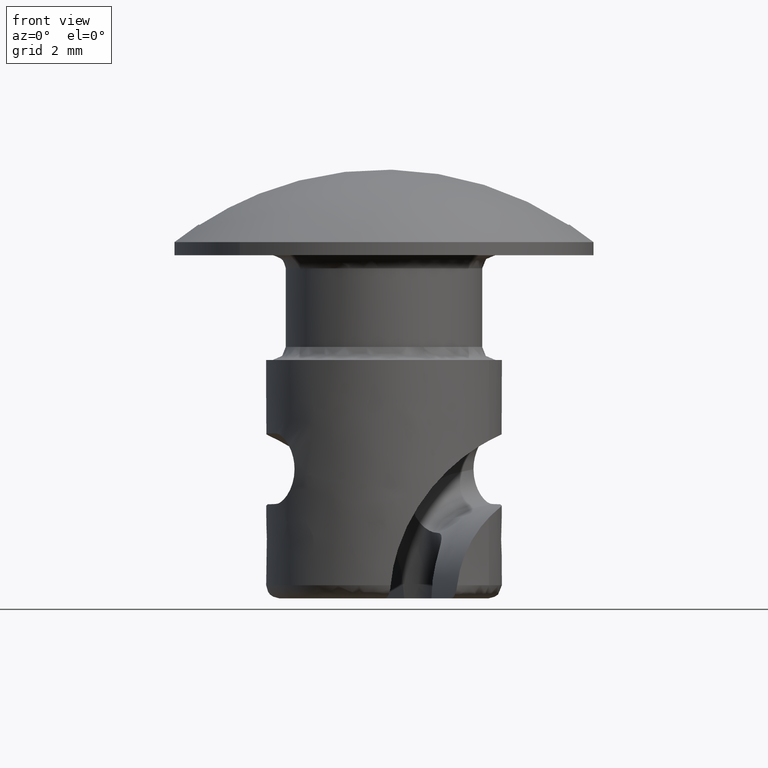
[diagram: clean part render]
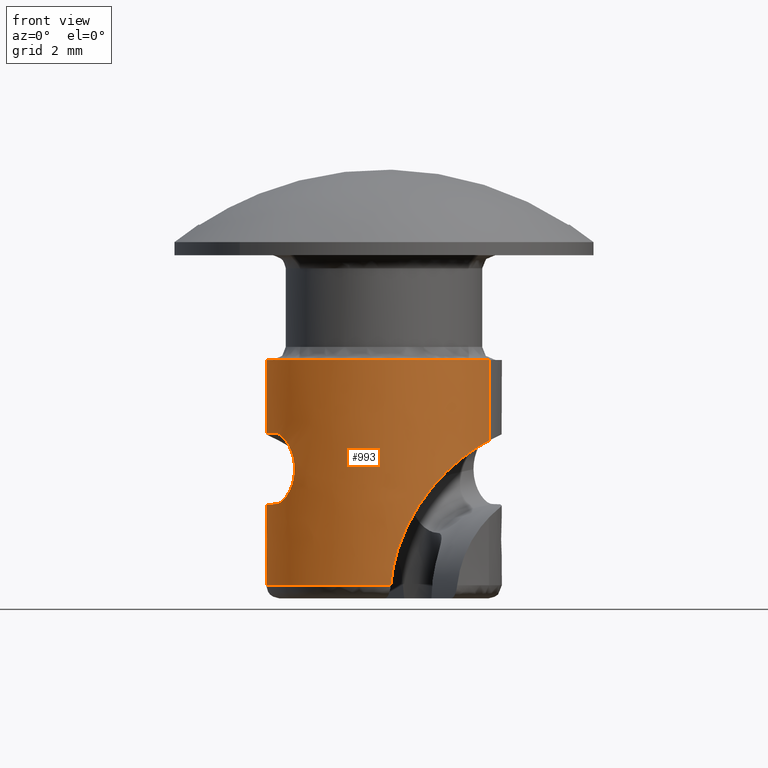
[diagram: same view with one face highlighted and labeled with its STEP entity id]
A machine part, front view. The second image highlights one B-rep face of the part: STEP entity #993.
In plain terms, the highlighted face is a freeform B-spline surface patch.
Its self-contained STEP definition (entity closure, byte-faithful):
#637=CARTESIAN_POINT('',(2.500424614555638,3.741373644388418,-12.815000000000005));
#638=CARTESIAN_POINT('',(2.283702444239493,3.886212813283292,-12.815000000000001));
#639=CARTESIAN_POINT('',(2.051706047068884,4.005059587124885,-12.815000000000000));
#640=CARTESIAN_POINT('',(-1.953353540056001,6.056765634193769,-12.815000000000000));
#641=CARTESIAN_POINT('',(-4.005059587124885,2.051706047068884,-12.815000000000000));
#642=CARTESIAN_POINT('',(-6.056765634193769,-1.953353540056001,-12.815000000000000));
#643=CARTESIAN_POINT('',(-2.051706047068884,-4.005059587124885,-12.815000000000000));
#644=CARTESIAN_POINT('',(1.953353540056001,-6.056765634193769,-12.815000000000000));
#645=CARTESIAN_POINT('',(4.005059587124885,-2.051706047068884,-12.815000000000000));
#646=CARTESIAN_POINT('',(2.500424614555638,3.741373644388418,-3.779624999999999));
#647=CARTESIAN_POINT('',(2.283702444239493,3.886212813283292,-3.779624999999999));
#648=CARTESIAN_POINT('',(2.051706047068884,4.005059587124885,-3.779624999999999));
#649=CARTESIAN_POINT('',(-1.953353540056001,6.056765634193769,-3.779624999999999));
#650=CARTESIAN_POINT('',(-4.005059587124885,2.051706047068884,-3.779624999999999));
#651=CARTESIAN_POINT('',(-6.056765634193769,-1.953353540056001,-3.779624999999999));
#652=CARTESIAN_POINT('',(-2.051706047068884,-4.005059587124885,-3.779624999999999));
#653=CARTESIAN_POINT('',(1.953353540056001,-6.056765634193769,-3.779624999999999));
#654=CARTESIAN_POINT('',(4.005059587124885,-2.051706047068884,-3.779624999999999));
#662=(BOUNDED_SURFACE()B_SPLINE_SURFACE(2,1,((#637,#646),(#638,#647),(#639,#648),(#640,#649),(#641,#650),(#642,#651),(#643,#652),(#644,#653),(#645,#654)),.UNSPECIFIED.,.F.,.F.,.U.)B_SPLINE_SURFACE_WITH_KNOTS((3,2,2,2,3),(2,2),(0.0,0.596467529817256,8.052311652532964,15.508155775248669,22.963999897964381),(0.0,9.035375000000000),.UNSPECIFIED.)GEOMETRIC_REPRESENTATION_ITEM()RATIONAL_B_SPLINE_SURFACE(((0.956886118190660,0.956886118190660),(0.976568542494924,0.976568542494924),(1.0,1.0),(0.707106781186548,0.707106781186548),(1.0,1.0),(0.707106781186548,0.707106781186548),(1.0,1.0),(0.707106781186548,0.707106781186548),(1.0,1.0)))REPRESENTATION_ITEM('')SURFACE());
#663=CARTESIAN_POINT('',(2.500424621410201,3.741373639807395,-12.599999999999961));
#664=VERTEX_POINT('',#663);
#665=CARTESIAN_POINT('',(-0.255835677203738,4.492721681371959,-12.600000000000000));
#666=VERTEX_POINT('',#665);
#667=CARTESIAN_POINT('',(2.500424621410201,3.741373639807395,-12.599999999999961));
#668=CARTESIAN_POINT('',(2.210917871225577,3.934939218416935,-12.599999999999930));
#669=CARTESIAN_POINT('',(1.688450026455417,4.202223976877243,-12.600000000000019));
#670=CARTESIAN_POINT('',(0.972968935123332,4.406961885124471,-12.599999999999969));
#671=CARTESIAN_POINT('',(0.358056186725397,4.498334755522321,-12.599999999999980));
#672=CARTESIAN_POINT('',(-0.029084047564699,4.505647930420465,-12.600000000000010));
#673=CARTESIAN_POINT('',(-0.255835677203738,4.492721681371959,-12.600000000000000));
#674=B_SPLINE_CURVE_WITH_KNOTS('',3,(#667,#668,#669,#670,#671,#672,#673),.UNSPECIFIED.,.F.,.U.,(4,1,1,1,4),(1.925266E-009,1.044749459875012,1.748816598366133,2.225769115806293,2.907126849070449),.UNSPECIFIED.);
#675=EDGE_CURVE('',#664,#666,#674,.T.);
#676=ORIENTED_EDGE('',*,*,#675,.T.);
#677=CARTESIAN_POINT('',(-4.138067084196240,-1.768163116539770,-6.800013149771270));
#678=VERTEX_POINT('',#677);
#679=CARTESIAN_POINT('',(-4.138067084196239,-1.768163116539770,-6.800013149771282));
#680=CARTESIAN_POINT('',(-4.162120584269074,-1.711870234972438,-6.799980936402176));
#681=CARTESIAN_POINT('',(-4.185139499410875,-1.654804810093842,-6.800007726619280));
#682=CARTESIAN_POINT('',(-4.228739943453012,-1.539977298431325,-6.800182116171027));
#683=CARTESIAN_POINT('',(-4.249293794694857,-1.482305999990158,-6.800329297643393));
#684=CARTESIAN_POINT('',(-4.307279568646926,-1.308532782345518,-6.800964110782364));
#685=CARTESIAN_POINT('',(-4.341041762639187,-1.191672736446709,-6.801640629501314));
#686=CARTESIAN_POINT('',(-4.427918872501649,-0.838119586703207,-6.804698178833391));
#687=CARTESIAN_POINT('',(-4.466718190352324,-0.598471889287403,-6.808029505165070));
#688=CARTESIAN_POINT('',(-4.495625889447170,-0.232986825175193,-6.817355387114368));
#689=CARTESIAN_POINT('',(-4.500322625997481,-0.109668659982697,-6.821229586705407));
#690=CARTESIAN_POINT('',(-4.499642523005720,0.134714951679389,-6.830921266458310));
#691=CARTESIAN_POINT('',(-4.494335427102561,0.256174361046528,-6.836742732970180));
#692=CARTESIAN_POINT('',(-4.463896065566551,0.618333934121717,-6.858062208427451));
#693=CARTESIAN_POINT('',(-4.424327082497261,0.856832240254244,-6.877337504827369));
#694=CARTESIAN_POINT('',(-4.350743935625671,1.150957941420996,-6.911838674140927));
#695=CARTESIAN_POINT('',(-4.334814689617867,1.209581884264864,-6.919265392161295));
#696=CARTESIAN_POINT('',(-4.300503849941264,1.326413723055132,-6.935301400341890));
#697=CARTESIAN_POINT('',(-4.282114856965352,1.384615700621658,-6.943914657398846));
#698=CARTESIAN_POINT('',(-4.223890846989503,1.556733522258694,-6.971420175291105));
#699=CARTESIAN_POINT('',(-4.180827555734906,1.668791145467518,-6.992057946746738));
#700=CARTESIAN_POINT('',(-4.039648508606131,1.996990655673844,-7.061951742246581));
#701=CARTESIAN_POINT('',(-3.929583822020176,2.205192509550785,-7.119136251935282));
#702=CARTESIAN_POINT('',(-3.773776541470442,2.451941486598170,-7.208057012388885));
#703=CARTESIAN_POINT('',(-3.741700470887508,2.500613439011617,-7.226717228558710));
#704=CARTESIAN_POINT('',(-3.675750000041187,2.596584664978697,-7.265913419215379));
#705=CARTESIAN_POINT('',(-3.641869995164322,2.643877430368746,-7.286456191801182));
#706=CARTESIAN_POINT('',(-3.538775313720352,2.782137486352728,-7.350333165431004));
#707=CARTESIAN_POINT('',(-3.467742085032229,2.870038461614260,-7.396130262340711));
#708=CARTESIAN_POINT('',(-3.248844148161697,3.121607832311864,-7.543691025892172));
#709=CARTESIAN_POINT('',(-3.095198507710278,3.273172924070221,-7.655602838315226));
#710=CARTESIAN_POINT('',(-2.896704805394871,3.444103068284201,-7.814420091456924));
#711=CARTESIAN_POINT('',(-2.856591886879264,3.477431959422744,-7.847208277497392));
#712=CARTESIAN_POINT('',(-2.776290280585696,3.541872741717937,-7.914321510181130));
#713=CARTESIAN_POINT('',(-2.736134122483444,3.572965362421574,-7.948615439626777));
#714=CARTESIAN_POINT('',(-2.615760547592370,3.663037322603957,-8.053706294606059));
#715=CARTESIAN_POINT('',(-2.535639431553037,3.718814849784419,-8.126711032528254));
#716=CARTESIAN_POINT('',(-2.296479495805418,3.874582142714254,-8.354578910618120));
#717=CARTESIAN_POINT('',(-2.138645657105514,3.963043453159896,-8.518273065862685));
#718=CARTESIAN_POINT('',(-1.830242256679663,4.114575547994460,-8.869846666436303));
#719=CARTESIAN_POINT('',(-1.682894094861580,4.176100746619117,-9.054070370533689));
#720=CARTESIAN_POINT('',(-1.404564652593713,4.277750357035465,-9.438010981697275));
#721=CARTESIAN_POINT('',(-1.273440856920383,4.317900534791950,-9.637878852002014));
#722=CARTESIAN_POINT('',(-1.090499434697305,4.366324557798301,-9.949686213454411));
#723=CARTESIAN_POINT('',(-1.031813648960730,4.380488236283283,-10.055628109112380));
#724=CARTESIAN_POINT('',(-0.947483372539950,4.399216340140572,-10.217618955006120));
#725=CARTESIAN_POINT('',(-0.919952989225039,4.405046146309106,-10.272208084229790));
#726=CARTESIAN_POINT('',(-0.866447850351115,4.415881925065333,-10.381855236338410));
#727=CARTESIAN_POINT('',(-0.840452383810333,4.420893358609324,-10.436947718881919));
#728=CARTESIAN_POINT('',(-0.714288498860547,4.444133740423610,-10.713753923246950));
#729=CARTESIAN_POINT('',(-0.625529803047437,4.456969036458677,-10.939486281545831));
#730=CARTESIAN_POINT('',(-0.473567650921274,4.475666900748187,-11.399715568056401));
#731=CARTESIAN_POINT('',(-0.410363110978916,4.481524401880756,-11.634212372694890));
#732=CARTESIAN_POINT('',(-0.336222601784926,4.487490286777813,-11.992915035678280));
#733=CARTESIAN_POINT('',(-0.314924447559079,4.489001255570257,-12.113940034361780));
#734=CARTESIAN_POINT('',(-0.279805911397656,4.491327012379375,-12.356505007957781));
#735=CARTESIAN_POINT('',(-0.265953313907209,4.492145537862232,-12.478096892140790));
#736=CARTESIAN_POINT('',(-0.255835677203738,4.492721681371959,-12.600000000000000));
#737=B_SPLINE_CURVE_WITH_KNOTS('',3,(#679,#680,#681,#682,#683,#684,#685,#686,#687,#688,#689,#690,#691,#692,#693,#694,#695,#696,#697,#698,#699,#700,#701,#702,#703,#704,#705,#706,#707,#708,#709,#710,#711,#712,#713,#714,#715,#716,#717,#718,#719,#720,#721,#722,#723,#724,#725,#726,#727,#728,#729,#730,#731,#732,#733,#734,#735,#736),.UNSPECIFIED.,.F.,.U.,(4,2,2,2,2,2,2,2,2,2,2,2,2,2,2,2,2,2,2,2,2,2,2,2,2,2,2,2,4),(0.0,0.015625000000000,0.031250000000000,0.062499999999999,0.124999999999999,0.156249999999999,0.187499999999998,0.249999999999998,0.265624999999998,0.281249999999997,0.312499999999997,0.374999999999997,0.390624999999997,0.406249999999997,0.437499999999997,0.499999999999997,0.515624999999996,0.531249999999996,0.562499999999996,0.624999999999996,0.687499999999996,0.749999999999996,0.781249999999996,0.796874999999996,0.812499999999996,0.874999999999998,0.937499999999999,0.968750000000000,1.0),.UNSPECIFIED.);
#738=EDGE_CURVE('',#678,#666,#737,.T.);
#739=ORIENTED_EDGE('',*,*,#738,.F.);
#740=CARTESIAN_POINT('',(-3.415381198139435,-2.930046291681350,-8.170462200892130));
#741=VERTEX_POINT('',#740);
#742=CARTESIAN_POINT('',(-4.138067084196240,-1.768163116539770,-6.800013149771270));
#743=CARTESIAN_POINT('',(-4.102541713172384,-1.851303844401668,-6.800060726709596));
#744=CARTESIAN_POINT('',(-4.065165760879489,-1.931852949697245,-6.809233237699533));
#745=CARTESIAN_POINT('',(-4.006647248863185,-2.049069287224636,-6.836010289384632));
#746=CARTESIAN_POINT('',(-3.986732312869700,-2.087537167938670,-6.847122783823728));
#747=CARTESIAN_POINT('',(-3.946146796107014,-2.163277935351615,-6.873810659168159));
#748=CARTESIAN_POINT('',(-3.925515551303553,-2.200460772988971,-6.889387940334792));
#749=CARTESIAN_POINT('',(-3.864047971951117,-2.307798322734312,-6.941709687551087));
#750=CARTESIAN_POINT('',(-3.823165163859460,-2.374644334663887,-6.984269859036838));
#751=CARTESIAN_POINT('',(-3.762766440123775,-2.468394339171397,-7.059503605531202));
#752=CARTESIAN_POINT('',(-3.742700634400656,-2.498678001110207,-7.086641080301975));
#753=CARTESIAN_POINT('',(-3.703793107336876,-2.555996167841224,-7.143759301832453));
#754=CARTESIAN_POINT('',(-3.684885201104129,-2.583140956090979,-7.173801872152760));
#755=CARTESIAN_POINT('',(-3.629991790121331,-2.660290243761957,-7.268286436362699));
#756=CARTESIAN_POINT('',(-3.595745260727948,-2.706138452807791,-7.337201084492217));
#757=CARTESIAN_POINT('',(-3.533876387058074,-2.786447018481747,-7.486491024522552));
#758=CARTESIAN_POINT('',(-3.507103599031713,-2.819831620189124,-7.564786027632745));
#759=CARTESIAN_POINT('',(-3.473875371948746,-2.860506319746183,-7.687631841679592));
#760=CARTESIAN_POINT('',(-3.463960285180555,-2.872483544934629,-7.729487731523726));
#761=CARTESIAN_POINT('',(-3.446647801500773,-2.893233745420214,-7.815086096206165));
#762=CARTESIAN_POINT('',(-3.439245722064781,-2.902011828181658,-7.858964221553952));
#763=CARTESIAN_POINT('',(-3.421493946064818,-2.922963278529155,-7.990919675742077));
#764=CARTESIAN_POINT('',(-3.415381198139474,-2.930046291681306,-8.080072810121010));
#765=CARTESIAN_POINT('',(-3.415381198139435,-2.930046291681350,-8.170462200892130));
#766=B_SPLINE_CURVE_WITH_KNOTS('',3,(#742,#743,#744,#745,#746,#747,#748,#749,#750,#751,#752,#753,#754,#755,#756,#757,#758,#759,#760,#761,#762,#763,#764,#765),.UNSPECIFIED.,.F.,.U.,(4,2,2,2,2,2,2,2,2,2,2,4),(0.0,0.125000000000000,0.187500000000000,0.250000000000000,0.374999999999999,0.437499999999999,0.499999999999998,0.624999999999998,0.749999999999998,0.812499999999998,0.874999999999999,1.0),.UNSPECIFIED.);
#767=EDGE_CURVE('',#678,#741,#766,.T.);
#768=ORIENTED_EDGE('',*,*,#767,.T.);
#769=CARTESIAN_POINT('',(-4.138063032500230,-1.768172598773950,-9.500023073641001));
#770=VERTEX_POINT('',#769);
#771=CARTESIAN_POINT('',(-3.415381198139435,-2.930046291681350,-8.170462200892130));
#772=CARTESIAN_POINT('',(-3.415618111906395,-2.929770135353187,-8.259604149095713));
#773=CARTESIAN_POINT('',(-3.421802148648597,-2.922602217950093,-8.347148882050893));
#774=CARTESIAN_POINT('',(-3.439512623059470,-2.901695423891059,-8.476149680890163));
#775=CARTESIAN_POINT('',(-3.446827758385330,-2.893019825841166,-8.518761326745061));
#776=CARTESIAN_POINT('',(-3.464267687394056,-2.872113280976766,-8.603189871157527));
#777=CARTESIAN_POINT('',(-3.474402374465607,-2.859867888620439,-8.644951943884443));
#778=CARTESIAN_POINT('',(-3.508141900050057,-2.818546648421340,-8.766199624288486));
#779=CARTESIAN_POINT('',(-3.535247653966994,-2.784711758777327,-8.842672204286274));
#780=CARTESIAN_POINT('',(-3.581852498570301,-2.724147860721738,-8.951012674900063));
#781=CARTESIAN_POINT('',(-3.598480234863441,-2.702180540303503,-8.986229597393789));
#782=CARTESIAN_POINT('',(-3.632980998450347,-2.655614568795045,-9.053260037088592));
#783=CARTESIAN_POINT('',(-3.650872648321683,-2.630996495479201,-9.085156901132196));
#784=CARTESIAN_POINT('',(-3.706165272343245,-2.553114487841421,-9.176165713531422));
#785=CARTESIAN_POINT('',(-3.745219186163713,-2.495786046597181,-9.230704012580912));
#786=CARTESIAN_POINT('',(-3.826236821502211,-2.369710220381097,-9.326903364266187));
#787=CARTESIAN_POINT('',(-3.866977766849984,-2.302853133142504,-9.367145568063121));
#788=CARTESIAN_POINT('',(-3.927648570783167,-2.196642689414697,-9.416242275744127));
#789=CARTESIAN_POINT('',(-3.947801955843739,-2.160246039993675,-9.430715041272975));
#790=CARTESIAN_POINT('',(-3.987865882469910,-2.085360625720280,-9.455782793777686));
#791=CARTESIAN_POINT('',(-4.007822241790287,-2.046766439954768,-9.466379040938067));
#792=CARTESIAN_POINT('',(-4.066045450838850,-1.929985056358961,-9.491636514053498));
#793=CARTESIAN_POINT('',(-4.103043213706784,-1.850129652997324,-9.500105350716606));
#794=CARTESIAN_POINT('',(-4.138063032500230,-1.768172598773950,-9.500023073641001));
#795=B_SPLINE_CURVE_WITH_KNOTS('',3,(#771,#772,#773,#774,#775,#776,#777,#778,#779,#780,#781,#782,#783,#784,#785,#786,#787,#788,#789,#790,#791,#792,#793,#794),.UNSPECIFIED.,.F.,.U.,(4,2,2,2,2,2,2,2,2,2,2,4),(0.0,0.124999999999999,0.187499999999999,0.249999999999998,0.374999999999997,0.437499999999997,0.499999999999996,0.624999999999997,0.749999999999998,0.812499999999998,0.874999999999999,1.0),.UNSPECIFIED.);
#796=EDGE_CURVE('',#741,#770,#795,.T.);
#797=ORIENTED_EDGE('',*,*,#796,.T.);
#798=CARTESIAN_POINT('',(-2.793620478200035,3.527844189272170,-12.600000000000000));
#799=VERTEX_POINT('',#798);
#800=CARTESIAN_POINT('',(-4.138063032500230,-1.768172598773950,-9.500023073641001));
#801=CARTESIAN_POINT('',(-4.168328122547392,-1.697343059629244,-9.499951967530395));
#802=CARTESIAN_POINT('',(-4.196950333338537,-1.625285357311613,-9.500044636555153));
#803=CARTESIAN_POINT('',(-4.250164566732099,-1.480555891851755,-9.500567398503089));
#804=CARTESIAN_POINT('',(-4.274812127535018,-1.407782667573173,-9.500996533212673));
#805=CARTESIAN_POINT('',(-4.342984774426200,-1.188261885470461,-9.502852634212989));
#806=CARTESIAN_POINT('',(-4.380754387644680,-1.040315831254364,-9.504828674120256));
#807=CARTESIAN_POINT('',(-4.441143681764538,-0.741288629043693,-9.511080713071232));
#808=CARTESIAN_POINT('',(-4.463763264744651,-0.590207390359400,-9.515353666511967));
#809=CARTESIAN_POINT('',(-4.486134514660715,-0.361218670889990,-9.524602076307589));
#810=CARTESIAN_POINT('',(-4.491661619841209,-0.284493983436655,-9.528163484463667));
#811=CARTESIAN_POINT('',(-4.498777330749269,-0.130243856295349,-9.536504436332484));
#812=CARTESIAN_POINT('',(-4.500338507362022,-0.053143946064786,-9.541264284197263));
#813=CARTESIAN_POINT('',(-4.498339757953023,0.329961785059230,-9.568487095256163));
#814=CARTESIAN_POINT('',(-4.465683664315762,0.631085748863217,-9.600936686695297));
#815=CARTESIAN_POINT('',(-4.388289797123106,0.999287318404941,-9.667967968747174));
#816=CARTESIAN_POINT('',(-4.370970281357151,1.072512220493026,-9.682725082710084));
#817=CARTESIAN_POINT('',(-4.332662924779252,1.218070459315712,-9.715399876922481));
#818=CARTESIAN_POINT('',(-4.311581235456068,1.290682636090794,-9.733398817823421));
#819=CARTESIAN_POINT('',(-4.243668090614533,1.504546046112448,-9.792213331712052));
#820=CARTESIAN_POINT('',(-4.192241071672136,1.641866666112213,-9.837772360911551));
#821=CARTESIAN_POINT('',(-4.079059008771930,1.905751546047315,-9.944236953607417));
#822=CARTESIAN_POINT('',(-4.017296254000811,2.032316319778377,-10.005133266200680));
#823=CARTESIAN_POINT('',(-3.918414839228302,2.213768247068120,-10.110348923946040));
#824=CARTESIAN_POINT('',(-3.884330653253195,2.272967812627677,-10.147847850228709));
#825=CARTESIAN_POINT('',(-3.815589623160804,2.386563036810768,-10.226497587743870));
#826=CARTESIAN_POINT('',(-3.780804210438523,2.441210681898058,-10.267778528935700));
#827=CARTESIAN_POINT('',(-3.675787335686598,2.598951278330820,-10.397663843540981));
#828=CARTESIAN_POINT('',(-3.604895060350069,2.695852464828304,-10.492299435833070));
#829=CARTESIAN_POINT('',(-3.499500987527410,2.829613942812514,-10.647167593241750));
#830=CARTESIAN_POINT('',(-3.464526585961291,2.872266783003241,-10.700945192161189));
#831=CARTESIAN_POINT('',(-3.395276965364714,2.953803525294149,-10.812992119372399));
#832=CARTESIAN_POINT('',(-3.361120331420279,2.992538066379294,-10.871097952697790));
#833=CARTESIAN_POINT('',(-3.261910400238427,3.101547417802909,-11.049294494813511));
#834=CARTESIAN_POINT('',(-3.199575595285789,3.165305594559935,-11.174112463458000));
#835=CARTESIAN_POINT('',(-3.113381378354227,3.249379520330357,-11.370255798345900));
#836=CARTESIAN_POINT('',(-3.085867189602426,3.275468912893017,-11.437126429712629));
#837=CARTESIAN_POINT('',(-3.033543951179644,3.323986162344052,-11.573873624699370));
#838=CARTESIAN_POINT('',(-3.008652015758917,3.346486413382989,-11.644014838357480));
#839=CARTESIAN_POINT('',(-2.939165877684688,3.408098738446784,-11.856815575831980));
#840=CARTESIAN_POINT('',(-2.899769784620653,3.441376515818133,-12.001570141731589));
#841=CARTESIAN_POINT('',(-2.835529941852480,3.494496684256765,-12.296614324691729));
#842=CARTESIAN_POINT('',(-2.810680969913995,3.514334369545657,-12.446903671405041));
#843=CARTESIAN_POINT('',(-2.793620478200035,3.527844189272170,-12.600000000000000));
#844=B_SPLINE_CURVE_WITH_KNOTS('',3,(#800,#801,#802,#803,#804,#805,#806,#807,#808,#809,#810,#811,#812,#813,#814,#815,#816,#817,#818,#819,#820,#821,#822,#823,#824,#825,#826,#827,#828,#829,#830,#831,#832,#833,#834,#835,#836,#837,#838,#839,#840,#841,#842,#843),.UNSPECIFIED.,.F.,.U.,(4,2,2,2,2,2,2,2,2,2,2,2,2,2,2,2,2,2,2,2,2,4),(0.0,0.031250000000000,0.062500000000000,0.125000000000000,0.187500000000000,0.218750000000000,0.250000000000000,0.375000000000000,0.406250000000000,0.437500000000000,0.500000000000000,0.562500000000000,0.593750000000000,0.625000000000000,0.687500000000000,0.718750000000000,0.750000000000000,0.812500000000000,0.843749999999999,0.874999999999999,0.937500000000000,1.0),.UNSPECIFIED.);
#845=EDGE_CURVE('',#770,#799,#844,.T.);
#846=ORIENTED_EDGE('',*,*,#845,.T.);
#847=CARTESIAN_POINT('',(0.255835677203739,-4.492721681371959,-12.600000000000000));
#848=VERTEX_POINT('',#847);
#849=CARTESIAN_POINT('',(-2.793620478200035,3.527844189272170,-12.600000000000000));
#850=CARTESIAN_POINT('',(-2.985287987978094,3.376085306141600,-12.599999999999950));
#851=CARTESIAN_POINT('',(-3.376400913038649,3.010788708552870,-12.600000000000151));
#852=CARTESIAN_POINT('',(-3.804110574536549,2.438451845704403,-12.599999999999829));
#853=CARTESIAN_POINT('',(-4.098807749818092,1.880698144573200,-12.600000000000190));
#854=CARTESIAN_POINT('',(-4.325696385628559,1.300243553867057,-12.599999999999790));
#855=CARTESIAN_POINT('',(-4.471414105874918,0.661857925854401,-12.600000000000129));
#856=CARTESIAN_POINT('',(-4.509664700021318,0.039238741089287,-12.599999999999961));
#857=CARTESIAN_POINT('',(-4.482204497978329,-0.486554120307645,-12.600000000000030));
#858=CARTESIAN_POINT('',(-4.387422481194817,-1.080254809587347,-12.599999999999829));
#859=CARTESIAN_POINT('',(-4.182919535992961,-1.710130021243461,-12.599999999999980));
#860=CARTESIAN_POINT('',(-3.885879567914774,-2.291971851263720,-12.599999999999790));
#861=CARTESIAN_POINT('',(-3.573689809399021,-2.752778452626777,-12.600000000000099));
#862=CARTESIAN_POINT('',(-3.144761918095918,-3.245392352598353,-12.600000000000660));
#863=CARTESIAN_POINT('',(-2.625126816837958,-3.679783507216760,-12.599999999999520));
#864=CARTESIAN_POINT('',(-1.953777902396599,-4.076132389789696,-12.600000000000421));
#865=CARTESIAN_POINT('',(-1.273842043933937,-4.340118622021321,-12.599999999999840));
#866=CARTESIAN_POINT('',(-0.501025699698659,-4.492732601909153,-12.600000000000010));
#867=CARTESIAN_POINT('',(-0.003033301113681,-4.507484775183688,-12.600000000000000));
#868=CARTESIAN_POINT('',(0.255835677203739,-4.492721681371959,-12.600000000000000));
#869=B_SPLINE_CURVE_WITH_KNOTS('',3,(#849,#850,#851,#852,#853,#854,#855,#856,#857,#858,#859,#860,#861,#862,#863,#864,#865,#866,#867,#868),.UNSPECIFIED.,.F.,.U.,(4,1,1,1,1,1,1,1,1,1,1,1,1,1,1,1,1,4),(0.000000025429468,0.733420291207430,1.600193682103772,2.133595980820024,2.622548139399880,3.467101149143620,4.089398771517793,4.489449842368201,5.045074910048840,5.889612253497705,6.467467565482010,7.000863487427007,7.556495542304383,8.423270390123612,9.023347729665598,9.890124028882781,10.601328104906219,11.379193751683809),.UNSPECIFIED.);
#870=EDGE_CURVE('',#799,#848,#869,.T.);
#871=ORIENTED_EDGE('',*,*,#870,.T.);
#872=CARTESIAN_POINT('',(4.005065075704186,-2.051709767937144,-7.080848835180767));
#873=VERTEX_POINT('',#872);
#874=CARTESIAN_POINT('',(4.005065075704186,-2.051709767937144,-7.080848835180767));
#875=CARTESIAN_POINT('',(3.943339355540231,-2.172208781201602,-7.113144947599663));
#876=CARTESIAN_POINT('',(3.876542370826476,-2.289181153341390,-7.149408258224694));
#877=CARTESIAN_POINT('',(3.773771376901417,-2.451937861394226,-7.208060667503845));
#878=CARTESIAN_POINT('',(3.741695343175937,-2.500609839679296,-7.226720857588584));
#879=CARTESIAN_POINT('',(3.675744947525492,-2.596581118429172,-7.265916995026955));
#880=CARTESIAN_POINT('',(3.641864980991646,-2.643873910733618,-7.286459740476293));
#881=CARTESIAN_POINT('',(3.538770415549994,-2.782134048143961,-7.350336632007918));
#882=CARTESIAN_POINT('',(3.467737265914014,-2.870035078895145,-7.396133672970136));
#883=CARTESIAN_POINT('',(3.248839571398712,-3.121604619710939,-7.543694264999787));
#884=CARTESIAN_POINT('',(3.095194099437455,-3.273169829738836,-7.655605958177477));
#885=CARTESIAN_POINT('',(2.896700616718429,-3.444100128095720,-7.814423055904460));
#886=CARTESIAN_POINT('',(2.856587742673385,-3.477429050449812,-7.847211210471826));
#887=CARTESIAN_POINT('',(2.776286225682399,-3.541869895429824,-7.914324379953541));
#888=CARTESIAN_POINT('',(2.736130112375451,-3.572962547576959,-7.948618277696254));
#889=CARTESIAN_POINT('',(2.615756672302458,-3.663034602393188,-8.053709037260880));
#890=CARTESIAN_POINT('',(2.535635646717830,-3.718812193067187,-8.126713711165662));
#891=CARTESIAN_POINT('',(2.296475984071496,-3.874579677697018,-8.354581395973845));
#892=CARTESIAN_POINT('',(2.138642329750926,-3.963041117565403,-8.518275420727820));
#893=CARTESIAN_POINT('',(1.830239302853754,-4.114573474593701,-8.869848756944382));
#894=CARTESIAN_POINT('',(1.682891326303013,-4.176098803264427,-9.054072329922708));
#895=CARTESIAN_POINT('',(1.404562251542712,-4.277748671648065,-9.438012680990553));
#896=CARTESIAN_POINT('',(1.273438638263734,-4.317898977433961,-9.637880422209532));
#897=CARTESIAN_POINT('',(1.090497488115368,-4.366323191419717,-9.949687591106782));
#898=CARTESIAN_POINT('',(1.031811792816199,-4.380486933386092,-10.055629422759580));
#899=CARTESIAN_POINT('',(0.947481651725769,-4.399215132236809,-10.217620172876121));
#900=CARTESIAN_POINT('',(0.919951313530348,-4.405044970076399,-10.272209270167419));
#901=CARTESIAN_POINT('',(0.866446264329112,-4.415880811777236,-10.381856358812080));
#902=CARTESIAN_POINT('',(0.840450842371825,-4.420892276616049,-10.436948809802560));
#903=CARTESIAN_POINT('',(0.714287179120226,-4.444132814048574,-10.713754857265370));
#904=CARTESIAN_POINT('',(0.625528656783645,-4.456968231853297,-10.939487092789889));
#905=CARTESIAN_POINT('',(0.473566844664834,-4.475666334806670,-11.399716138667410));
#906=CARTESIAN_POINT('',(0.410362471252332,-4.481523952832766,-11.634212825447900));
#907=CARTESIAN_POINT('',(0.336222206899970,-4.487490009593310,-11.992915315149791));
#908=CARTESIAN_POINT('',(0.314924133649346,-4.489001035225288,-12.113940256524780));
#909=CARTESIAN_POINT('',(0.279805756540587,-4.491326903679412,-12.356505117554610));
#910=CARTESIAN_POINT('',(0.265953237172448,-4.492145483999236,-12.478096946448201));
#911=CARTESIAN_POINT('',(0.255835677203739,-4.492721681371959,-12.600000000000000));
#912=B_SPLINE_CURVE_WITH_KNOTS('',3,(#874,#875,#876,#877,#878,#879,#880,#881,#882,#883,#884,#885,#886,#887,#888,#889,#890,#891,#892,#893,#894,#895,#896,#897,#898,#899,#900,#901,#902,#903,#904,#905,#906,#907,#908,#909,#910,#911),.UNSPECIFIED.,.F.,.U.,(4,2,2,2,2,2,2,2,2,2,2,2,2,2,2,2,2,2,4),(0.339093433662570,0.374999999999997,0.390624999999997,0.406249999999997,0.437499999999997,0.499999999999997,0.515624999999996,0.531249999999996,0.562499999999996,0.624999999999996,0.687499999999996,0.749999999999996,0.781249999999996,0.796874999999996,0.812499999999996,0.874999999999998,0.937499999999999,0.968750000000000,1.0),.UNSPECIFIED.);
#913=EDGE_CURVE('',#873,#848,#912,.T.);
#914=ORIENTED_EDGE('',*,*,#913,.F.);
#915=CARTESIAN_POINT('',(4.005059610803407,-2.051706083030508,-3.999999999966255));
#916=VERTEX_POINT('',#915);
#917=CARTESIAN_POINT('',(4.005065075704186,-2.051709767937144,-7.080848835180767));
#918=CARTESIAN_POINT('',(4.005059610803407,-2.051706083030508,-3.999999999966255));
#919=QUASI_UNIFORM_CURVE('',1,(#917,#918),.UNSPECIFIED.,.F.,.U.);
#920=EDGE_CURVE('',#873,#916,#919,.T.);
#921=ORIENTED_EDGE('',*,*,#920,.T.);
#922=CARTESIAN_POINT('',(0.000000184679472,-4.499999999999996,-4.0));
#923=VERTEX_POINT('',#922);
#924=CARTESIAN_POINT('',(0.000000184679472,-4.499999999999996,-4.0));
#925=CARTESIAN_POINT('',(0.295778936966810,-4.500037281557921,-3.999999999997509));
#926=CARTESIAN_POINT('',(0.797298716411740,-4.450368228398904,-3.999999999993285));
#927=CARTESIAN_POINT('',(1.406736858557846,-4.284460042906309,-3.999999999988146));
#928=CARTESIAN_POINT('',(1.933273855171079,-4.075852456862482,-3.999999999983692));
#929=CARTESIAN_POINT('',(2.409392871051677,-3.817450552680066,-3.999999999979737));
#930=CARTESIAN_POINT('',(2.886692324223730,-3.466189986902720,-3.999999999975652));
#931=CARTESIAN_POINT('',(3.327904872195204,-3.051497823901295,-3.999999999971986));
#932=CARTESIAN_POINT('',(3.706803249983155,-2.578023242741447,-3.999999999968743));
#933=CARTESIAN_POINT('',(3.922976024311058,-2.211941840991316,-3.999999999966971));
#934=CARTESIAN_POINT('',(4.005059610803407,-2.051706083030508,-3.999999999966255));
#935=B_SPLINE_CURVE_WITH_KNOTS('',3,(#924,#925,#926,#927,#928,#929,#930,#931,#932,#933,#934),.UNSPECIFIED.,.F.,.U.,(4,1,1,1,1,1,1,1,4),(2.442825E-009,0.887330843107426,1.504608907706534,1.890405861837589,2.584835396179309,3.124953888548737,3.665069450842054,4.398085687122221,4.938198888911520),.UNSPECIFIED.);
#936=EDGE_CURVE('',#923,#916,#935,.T.);
#937=ORIENTED_EDGE('',*,*,#936,.F.);
#938=CARTESIAN_POINT('',(-4.500000000000000,0.0,-4.0));
#939=VERTEX_POINT('',#938);
#940=CARTESIAN_POINT('',(-4.500000000000000,0.0,-4.0));
#941=CARTESIAN_POINT('',(-4.500013197109833,-0.230096941619113,-3.999999999999997));
#942=CARTESIAN_POINT('',(-4.463214924419161,-0.708695956579006,-4.000000000000013));
#943=CARTESIAN_POINT('',(-4.288159021704606,-1.436001138539861,-3.999999999999995));
#944=CARTESIAN_POINT('',(-3.969157676192386,-2.173919869179176,-4.000000000000003));
#945=CARTESIAN_POINT('',(-3.535709907139199,-2.818334725957519,-3.999999999999999));
#946=CARTESIAN_POINT('',(-3.071135311142169,-3.306241256852333,-4.000000000000001));
#947=CARTESIAN_POINT('',(-2.605653845986323,-3.683500220591633,-4.0));
#948=CARTESIAN_POINT('',(-2.072509975989892,-4.014290854356594,-3.999999999999980));
#949=CARTESIAN_POINT('',(-1.409542367045222,-4.296094893550809,-4.000000000000119));
#950=CARTESIAN_POINT('',(-0.699491295019617,-4.464698995634705,-3.999999999999698));
#951=CARTESIAN_POINT('',(-0.220891273854350,-4.500008547641118,-4.000000000000304));
#952=CARTESIAN_POINT('',(0.000000184679472,-4.499999999999996,-4.0));
#953=B_SPLINE_CURVE_WITH_KNOTS('',3,(#940,#941,#942,#943,#944,#945,#946,#947,#948,#949,#950,#951,#952),.UNSPECIFIED.,.F.,.U.,(4,1,1,1,1,1,1,1,1,1,4),(0.000000011815142,0.690290504450893,1.435807895506922,2.236549682724434,3.092513375696298,3.755183278016640,4.252199276729250,4.887268394226560,5.632788102319342,6.405919590306414,7.068594663221603),.UNSPECIFIED.);
#954=EDGE_CURVE('',#939,#923,#953,.T.);
#955=ORIENTED_EDGE('',*,*,#954,.F.);
#956=CARTESIAN_POINT('',(-0.000000184679533,4.499999999999996,-4.0));
#957=VERTEX_POINT('',#956);
#958=CARTESIAN_POINT('',(-0.000000184679533,4.499999999999996,-4.0));
#959=CARTESIAN_POINT('',(-0.303730839734136,4.500044995037110,-4.000000000000001));
#960=CARTESIAN_POINT('',(-0.865150423258468,4.442938473860435,-4.000000000000011));
#961=CARTESIAN_POINT('',(-1.600229554414639,4.224866543030228,-3.999999999999965));
#962=CARTESIAN_POINT('',(-2.242354561292974,3.921166725835239,-4.000000000000058));
#963=CARTESIAN_POINT('',(-2.778775998497240,3.560347396678952,-3.999999999999973));
#964=CARTESIAN_POINT('',(-3.283071723565112,3.100457551516625,-4.000000000000033));
#965=CARTESIAN_POINT('',(-3.710671434702293,2.579436171691350,-4.000000000000046));
#966=CARTESIAN_POINT('',(-4.031462875317582,2.029001124124775,-4.000000000000028));
#967=CARTESIAN_POINT('',(-4.262407577689375,1.476236103610164,-3.999999999999859));
#968=CARTESIAN_POINT('',(-4.446006821725846,0.828330574354049,-4.000000000000135));
#969=CARTESIAN_POINT('',(-4.500051848957834,0.312935381321243,-3.999999999999949));
#970=CARTESIAN_POINT('',(-4.500000000000000,0.0,-4.0));
#971=B_SPLINE_CURVE_WITH_KNOTS('',3,(#958,#959,#960,#961,#962,#963,#964,#965,#966,#967,#968,#969,#970),.UNSPECIFIED.,.F.,.U.,(4,1,1,1,1,1,1,1,1,1,4),(0.000000011843564,0.911182459669188,1.684313404777527,2.291771426659025,3.037293087986988,3.617129644789672,4.335035027198277,5.052939265971570,5.522339942443955,6.129800474949466,7.068594455044402),.UNSPECIFIED.);
#972=EDGE_CURVE('',#957,#939,#971,.T.);
#973=ORIENTED_EDGE('',*,*,#972,.F.);
#974=CARTESIAN_POINT('',(2.500424597091727,3.741373604751267,-3.999999999999999));
#975=VERTEX_POINT('',#974);
#976=CARTESIAN_POINT('',(2.500424597091727,3.741373604751267,-3.999999999999999));
#977=CARTESIAN_POINT('',(2.259358033710857,3.902529707516736,-3.999999999999999));
#978=CARTESIAN_POINT('',(1.807040107377215,4.145160387640109,-4.000000000000001));
#979=CARTESIAN_POINT('',(1.124117204958825,4.373139901576141,-3.999999999999983));
#980=CARTESIAN_POINT('',(0.538515043509186,4.479389934959347,-4.000000000000041));
#981=CARTESIAN_POINT('',(0.165696307219456,4.500002470634667,-3.999999999999965));
#982=CARTESIAN_POINT('',(-0.000000184679533,4.499999999999996,-4.0));
#983=B_SPLINE_CURVE_WITH_KNOTS('',3,(#976,#977,#978,#979,#980,#981,#982),.UNSPECIFIED.,.F.,.U.,(4,1,1,1,4),(1.460930E-009,0.869910444320920,1.532696345425546,2.154062239346754,2.651152578663608),.UNSPECIFIED.);
#984=EDGE_CURVE('',#975,#957,#983,.T.);
#985=ORIENTED_EDGE('',*,*,#984,.F.);
#986=CARTESIAN_POINT('',(2.500424621410201,3.741373639807395,-12.599999999999961));
#987=CARTESIAN_POINT('',(2.500424597091727,3.741373604751267,-3.999999999999999));
#988=QUASI_UNIFORM_CURVE('',1,(#986,#987),.UNSPECIFIED.,.F.,.U.);
#989=EDGE_CURVE('',#664,#975,#988,.T.);
#990=ORIENTED_EDGE('',*,*,#989,.F.);
#991=EDGE_LOOP('',(#676,#739,#768,#797,#846,#871,#914,#921,#937,#955,#973,#985,#990));
#992=FACE_OUTER_BOUND('',#991,.T.);
#993=ADVANCED_FACE('',(#992),#662,.T.);